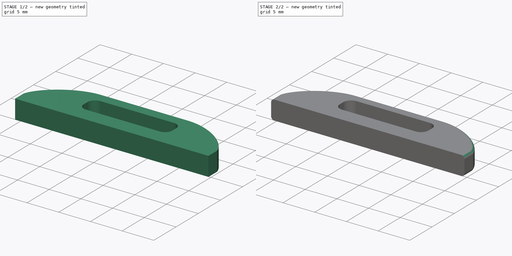
[diagram: build sequence overview — one tinted view per stage of 2, left to right]
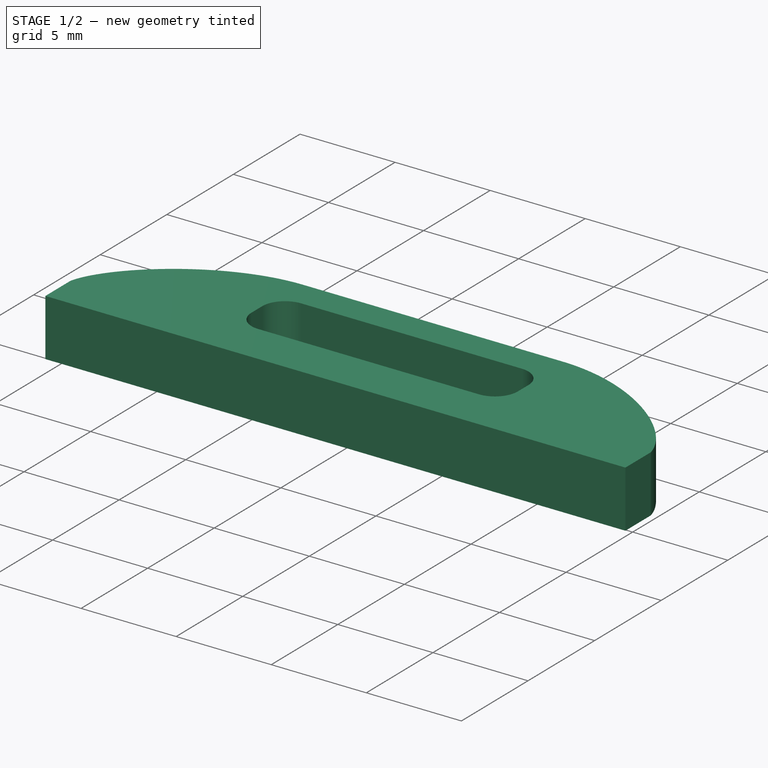
[diagram: stage 1 of 2 — iso view after this stage's code; geometry added in this stage tinted green]
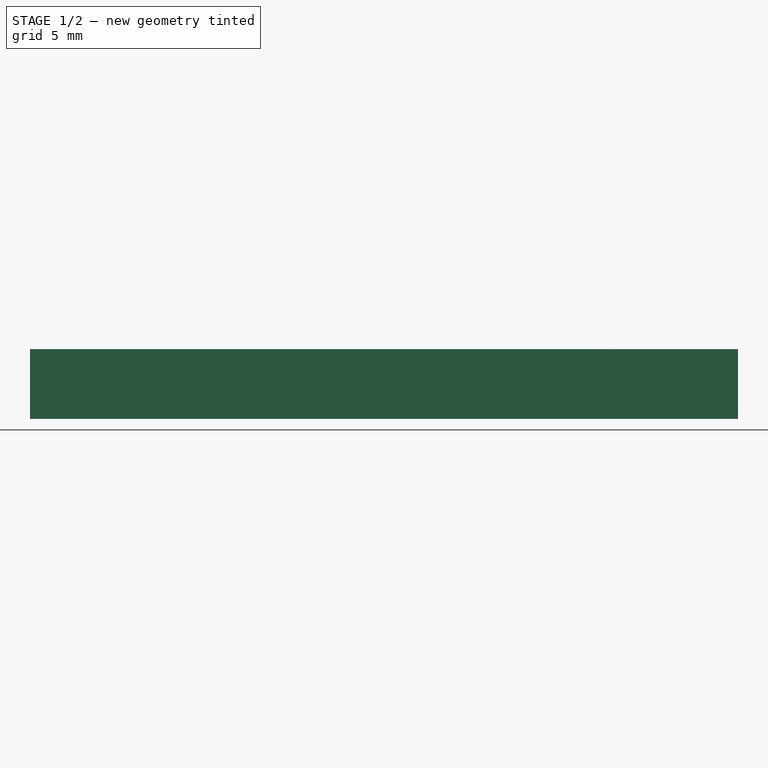
[diagram: stage 1 of 2 — front view after this stage's code; geometry added in this stage tinted green]
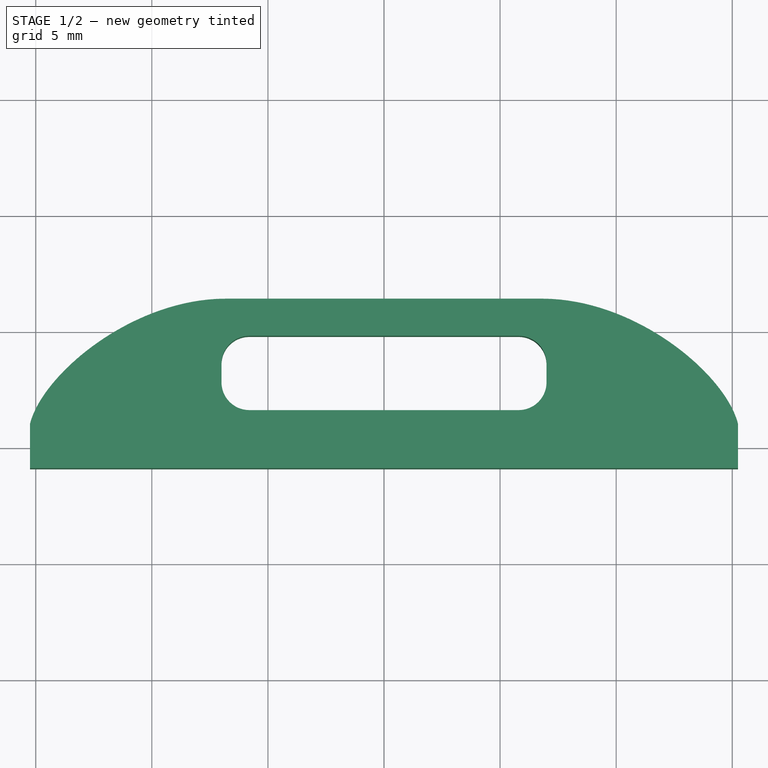
[diagram: stage 1 of 2 — top view after this stage's code; geometry added in this stage tinted green]
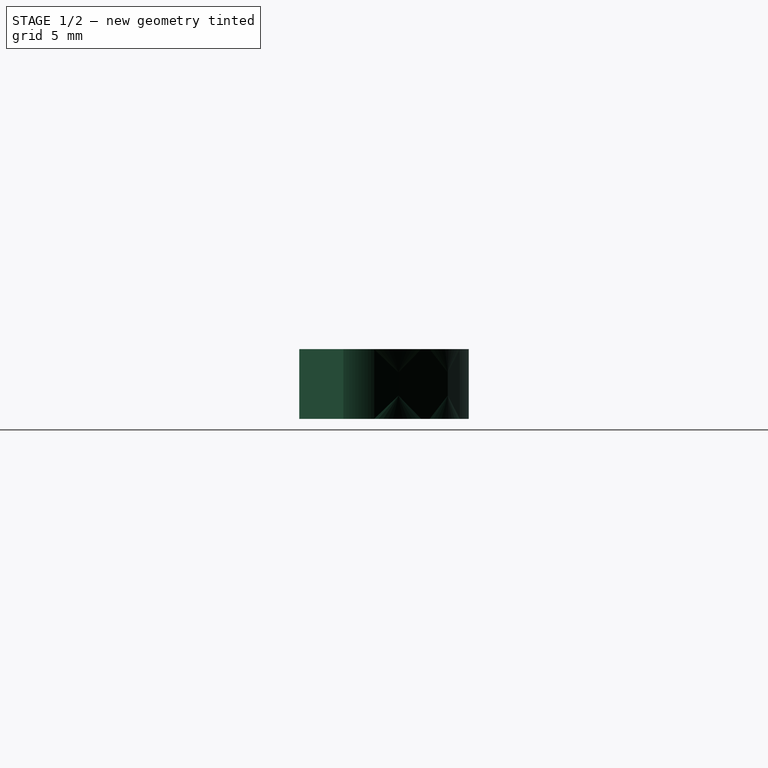
[diagram: stage 1 of 2 — right view after this stage's code; geometry added in this stage tinted green]
FCSTD DOCUMENT  (FreeCAD 0.21R33668 +26 (Git))
Label: HMV080_Mounting_Flange
License: All rights reserved
LicenseURL: http://en.wikipedia.org/wiki/All_rights_reserved
objects: Sketcher::SketchObject×1, PartDesign::Pad×1, PartDesign::Fillet×1, PartDesign::Body×1
note: 6 computed .brp shape members not serialized (recipe doc carries the construction recipe); baked Part::Feature solids carry a one-line shape summary decoded from their .brp

FEATURE [Sketcher::SketchObject] Sketch
  FullyConstrained = true
  MapMode = 5
  Support = -> [XY_Plane]
  expr: Constraints[29] = .Constraints.radius2
  expr: Constraints[30] = .Constraints.radius2
  expr: Constraints[31] = .Constraints.radius2
  expr: Constraints[34] = .Constraints.x
  expr: Constraints[35] = .Constraints.x
  sketch-geometry (33):
    g0: LineSegment StartX=6.75 StartY=6.4 StartZ=0 EndX=-6.75 EndY=6.4 EndZ=0
    g1: GeomPoint X=0 Y=3.2 Z=0
    g2: GeomPoint X=15.25 Y=6.4 Z=0
    g3: LineSegment StartX=7 StartY=2.8 StartZ=0 EndX=7 EndY=3.6 EndZ=0
    g4: LineSegment StartX=5.8 StartY=4.8 StartZ=0 EndX=-5.8 EndY=4.8 EndZ=0
    g5: LineSegment StartX=-7 StartY=3.6 StartZ=0 EndX=-7 EndY=2.8 EndZ=0
    g6: LineSegment StartX=-5.8 StartY=1.6 StartZ=0 EndX=5.8 EndY=1.6 EndZ=0
    g7: GeomPoint X=0 Y=3.2 Z=0
    g8: ArcOfCircle CenterX=-5.8 CenterY=3.6 CenterZ=0 NormalX=0 NormalY=0 NormalZ=1 AngleXU=0 Radius=1.2 StartAngle=1.5708 EndAngle=3.14159
    g9: GeomPoint X=-7 Y=4.8 Z=0
    g10: ArcOfCircle CenterX=-5.8 CenterY=2.8 CenterZ=0 NormalX=0 NormalY=0 NormalZ=1 AngleXU=0 Radius=1.2 StartAngle=3.14159 EndAngle=4.71239
    g11: GeomPoint X=-7 Y=1.6 Z=0
    g12: ArcOfCircle CenterX=5.8 CenterY=2.8 CenterZ=0 NormalX=0 NormalY=0 NormalZ=1 AngleXU=0 Radius=1.2 StartAngle=4.71239 EndAngle=6.28319
    g13: GeomPoint X=7 Y=1.6 Z=0
    g14: ArcOfCircle CenterX=5.8 CenterY=3.6 CenterZ=0 NormalX=0 NormalY=0 NormalZ=1 AngleXU=0 Radius=1.2 StartAngle=0 EndAngle=1.5708
    g15: GeomPoint X=7 Y=4.8 Z=0
    g16: LineSegment StartX=-15.25 StartY=-0.9 StartZ=0 EndX=-15.25 EndY=1 EndZ=0
    g17: LineSegment StartX=15.25 StartY=-0.9 StartZ=0 EndX=15.25 EndY=1 EndZ=0
    g18-g21: Circle x4 (B-spline internal-alignment scaffolding for g22; pole/knot coordinates omitted)
    g22: BSplineCurve PolesCount=4 KnotsCount=2 Degree=3 IsPeriodic=0
    g23: GeomPoint X=-15.25 Y=1 Z=0
    g24: GeomPoint X=-6.75 Y=6.4 Z=0
    g25-g28: Circle x4 (B-spline internal-alignment scaffolding for g29; pole/knot coordinates omitted)
    g29: BSplineCurve PolesCount=4 KnotsCount=2 Degree=3 IsPeriodic=0
    g30: GeomPoint X=15.25 Y=1 Z=0
    g31: GeomPoint X=6.75 Y=6.4 Z=0
    g32: LineSegment StartX=-15.25 StartY=-0.9 StartZ=0 EndX=15.25 EndY=-0.9 EndZ=0
  constraints (70):
    c: PointOnObject(g1,g-2)
    c: DistanceY(g-1,g1) = 3.2  'y'
    c: DistanceY(g1,g2) = 3.2
    c: DistanceX(g-1,g2) = 15.25  'x'
    c: Horizontal(g4)
    c: Horizontal(g6)
    c: Vertical(g3)
    c: Vertical(g5)
    c: Symmetric(g9,g13,g7)
    c: Coincident(g7,g1)
    c: DistanceY(g13,g15) = 3.2
    c: DistanceX(g-1,g15) = 7
    c: PointOnObject(g9,g4)
    c: PointOnObject(g9,g5)
    c: Tangent(g4,g8) = -1.5708
    c: Tangent(g5,g8) = -1.5708
    c: Radius(g8) = 1.2  'radius2'
    c: PointOnObject(g11,g5)
    c: PointOnObject(g11,g6)
    c: Tangent(g5,g10) = -1.5708
    c: Tangent(g6,g10) = -1.5708
    c: PointOnObject(g13,g3)
    c: PointOnObject(g13,g6)
    c: Tangent(g3,g12) = -1.5708
    c: Tangent(g6,g12) = -1.5708
    c: PointOnObject(g15,g3)
    c: PointOnObject(g15,g4)
    c: Tangent(g3,g14) = -1.5708
    c: Tangent(g4,g14) = -1.5708
    c: Radius(g10) = 1.2
    c: Radius(g12) = 1.2
    c: Radius(g14) = 1.2
    c: Vertical(g16)
    c: Vertical(g17)
    c: DistanceX(g-1,g17) = 15.25
    c: DistanceX(g16,g-1) = 15.25
    c: Horizontal(g17,g16)
    c: Weight(g18) = 1
    c: Coincident(g22,g16)
    c: Equal(g18,g19)
    c: Equal(g18,g20)
    c: Equal(g18,g21)
    c: Coincident(g22,g0)
    c: InternalAlignment(g18-g21 -> g22) x4
    c: InternalAlignment(g23,g22)
    c: InternalAlignment(g24,g22)
    c: Distance(g4,g0) = 1.6
    c: Distance(g-1,g6) = 1.6
    c: Symmetric(g0,g0,g-2)
    c: Weight(g25) = 1
    c: Coincident(g29,g17)
    c: Equal(g25,g26)
    c: Equal(g25,g27)
    c: Equal(g25,g28)
    c: Coincident(g29,g0)
    c: InternalAlignment(g25-g28 -> g29) x4
    c: InternalAlignment(g30,g29)
    c: InternalAlignment(g31,g29)
    c: Symmetric(g20,g27,g-2)
    c: Symmetric(g26,g19,g-2)
    c: DistanceX(g0,g-1) = 6.75
    c: Coincident(g32,g16)
    c: Coincident(g32,g17)
    c: Horizontal(g32)
    c: DistanceY(g17,g-1) = 0.9
    c: DistanceY(g-1,g17) = 1
    c: DistanceX(g20) = -10.788
    c: DistanceY(g20) = 6.43296
    c: DistanceY(g19) = 3.16992
    c: DistanceX(g19,g-1) = 14.71
FEATURE [PartDesign::Pad] Pad
  Direction = (0,0,1)
  Length = 3
  Length2 = 10
  Profile = -> Sketch
  ReferenceAxis = -> Sketch [N_Axis]
  Type = 0
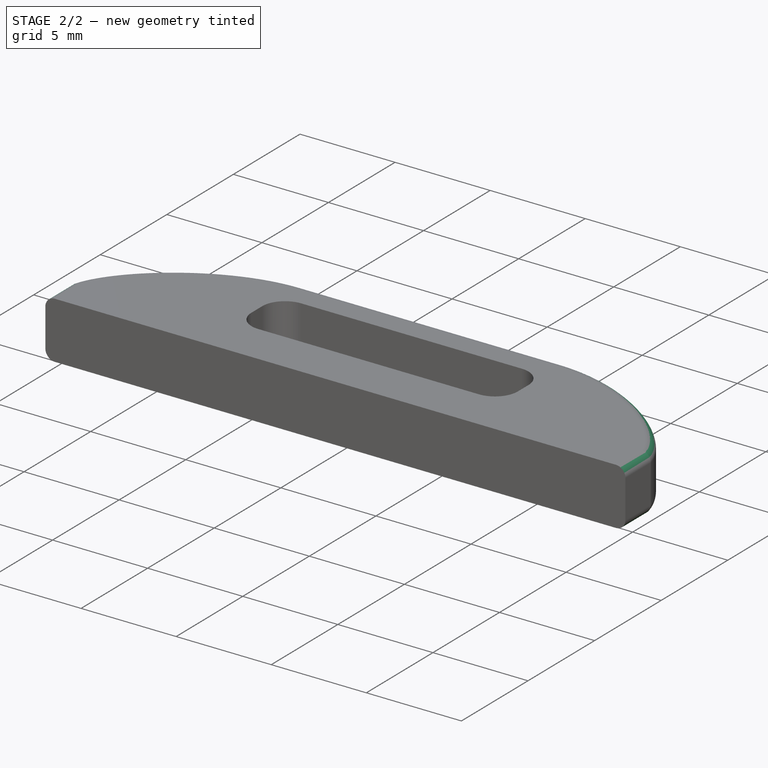
[diagram: stage 2 of 2 — iso view after this stage's code; geometry added in this stage tinted green]
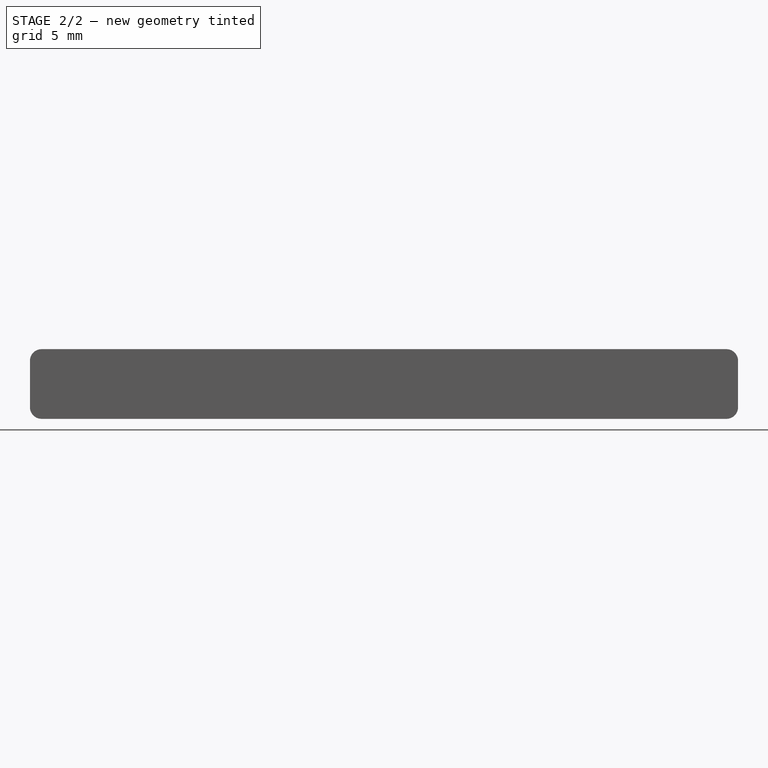
[diagram: stage 2 of 2 — front view after this stage's code; geometry added in this stage tinted green]
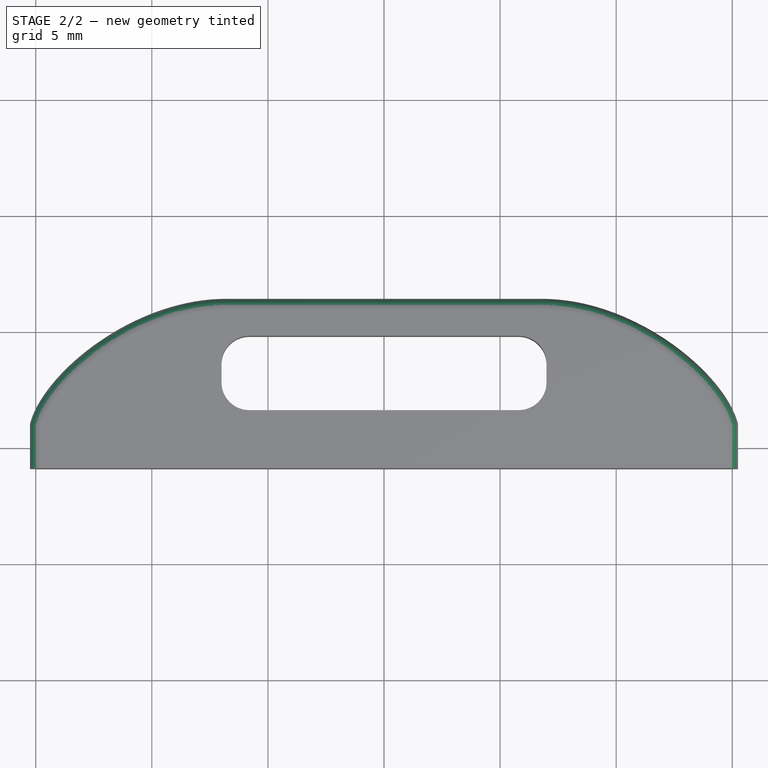
[diagram: stage 2 of 2 — top view after this stage's code; geometry added in this stage tinted green]
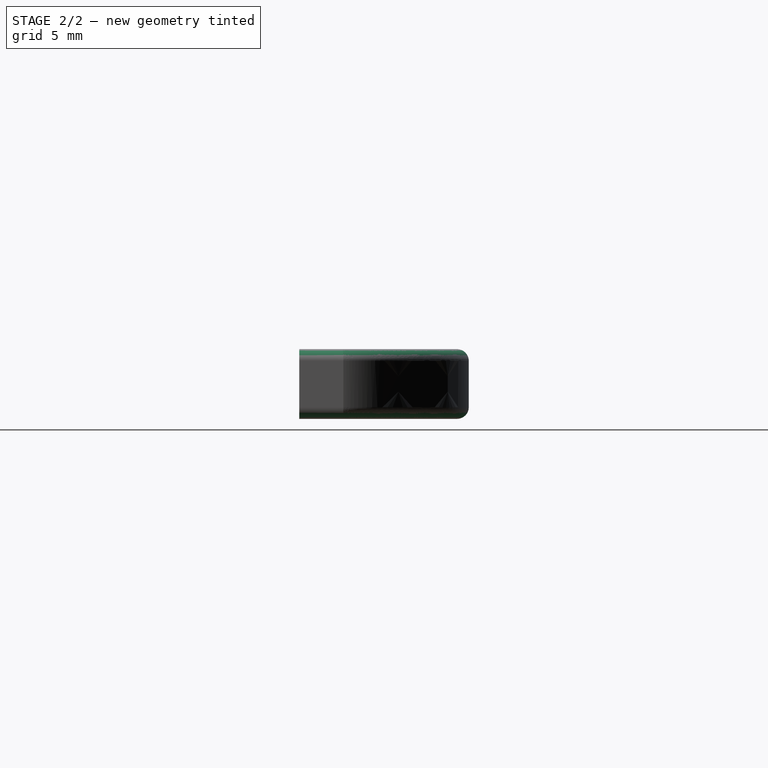
[diagram: stage 2 of 2 — right view after this stage's code; geometry added in this stage tinted green]
FEATURE [PartDesign::Fillet] Fillet
  Base = -> Pad [Edge10,Edge13,Edge16,Edge7,Edge18,Edge17,Edge15,Edge12,Edge9,Edge6]
  BaseFeature = -> Pad
  Radius = 0.5
  SupportTransform = false
  UseAllEdges = false
FEATURE [PartDesign::Body] Body
  Group = -> [Sketch,Pad,Fillet]
  Origin = -> Origin
  Tip = -> Fillet
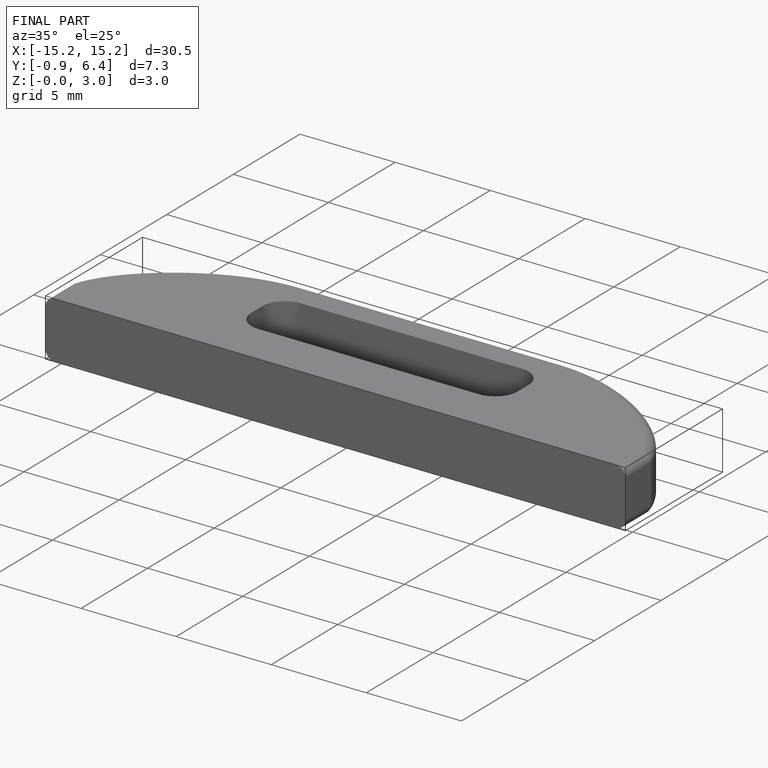
[diagram: finished part — iso view with bounding-box wireframe]
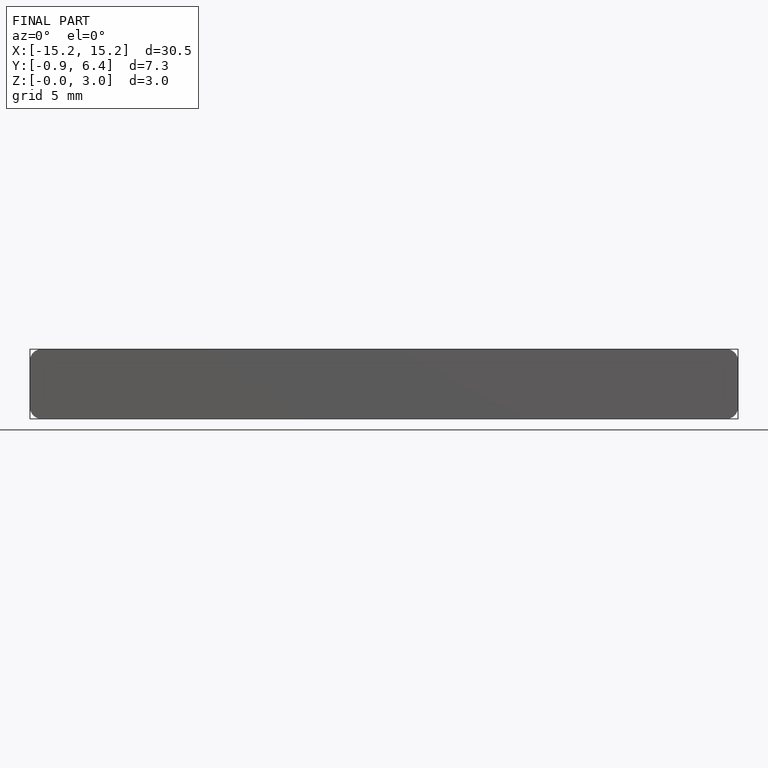
[diagram: finished part — front view with bounding-box wireframe]
